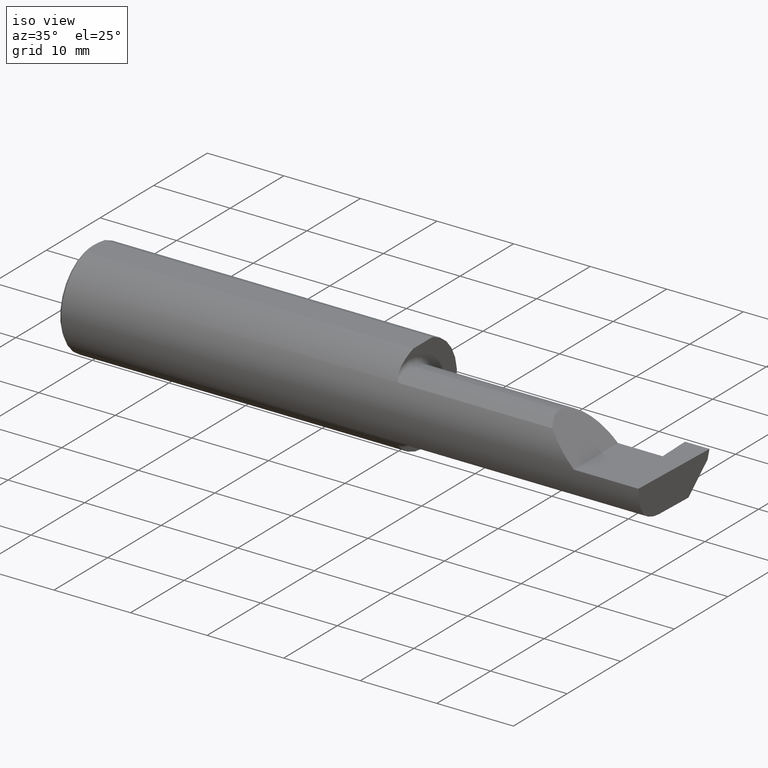
[diagram: clean part render]
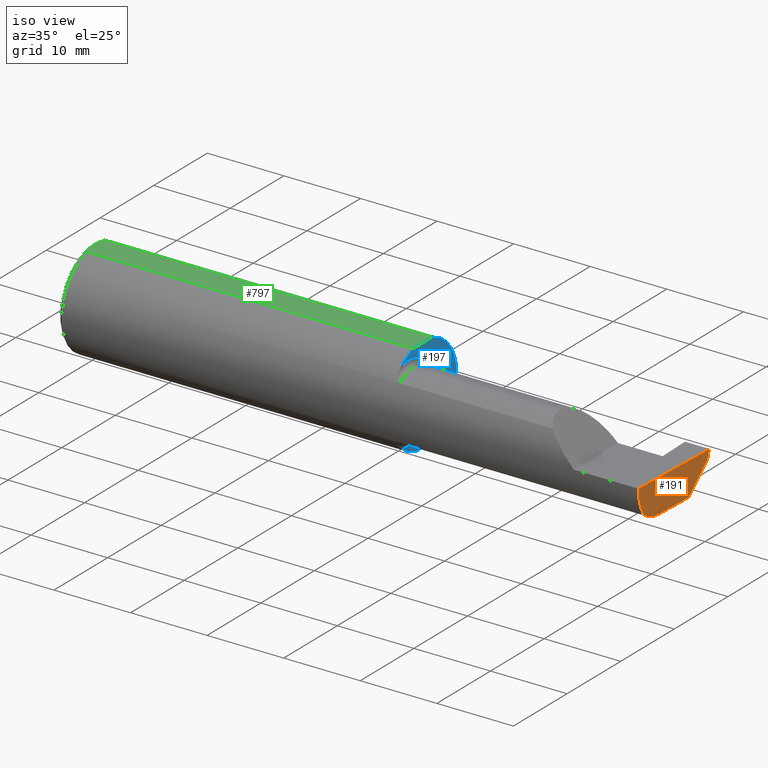
[diagram: same view with three faces highlighted in distinct colors, each labeled with its STEP entity id]
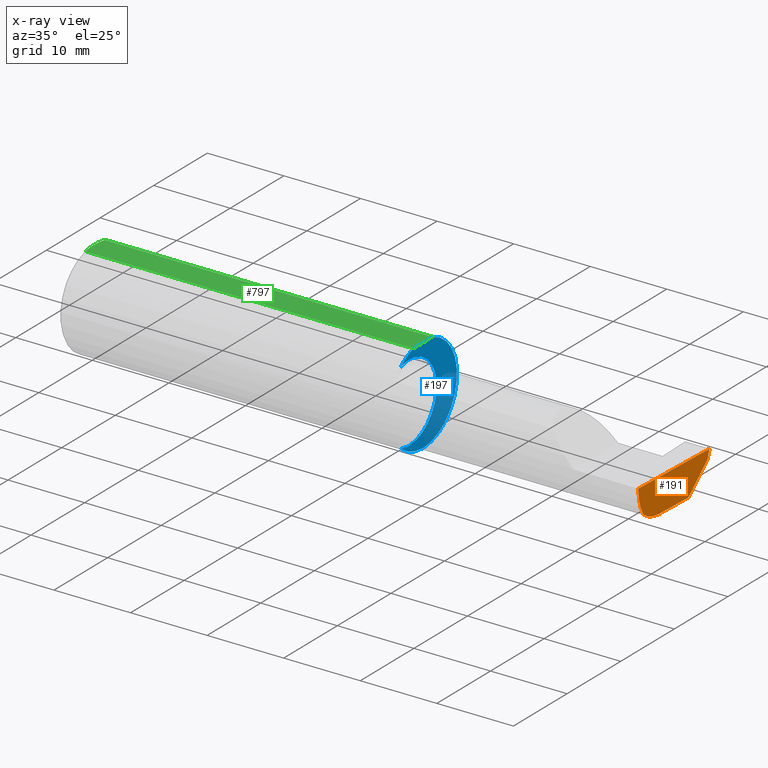
[diagram: x-ray of the same camera — body ghosted, the three highlighted faces saturated]
A machine part, iso view with three faces highlighted in distinct colors.
The next image is the same camera in x-ray (body ghosted, the three faces saturated) — at least one of them is partly hidden behind the body in this view.
Their STEP definitions:

[orange] entity #191 — the highlighted planar face has unit normal (-0.999, 0.0349, 0.0262).
#1 = VECTOR ( 'NONE', #216, 39.37007874015748854 ) ;
#6 =( BOUNDED_CURVE ( )  B_SPLINE_CURVE ( 3, ( #467, #591, #779, #187 ),
 .UNSPECIFIED., .F., .T. ) 
 B_SPLINE_CURVE_WITH_KNOTS ( ( 4, 4 ),
 ( 0.2675252011803428975, 0.9270880441442503894 ),
 .UNSPECIFIED. ) 
 CURVE ( )  GEOMETRIC_REPRESENTATION_ITEM ( )  RATIONAL_B_SPLINE_CURVE ( ( 1.000000000000000000, 0.9640754331822828371, 0.9640754331822828371, 1.000000000000000000 ) ) 
 REPRESENTATION_ITEM ( '' )  );
#21 = DIRECTION ( 'NONE',  ( -0.03489949670249939406, -0.9993908270190957621, 2.445004146800612422E-16 ) ) ;
#44 = ORIENTED_EDGE ( 'NONE', *, *, #616, .T. ) ;
#54 = ORIENTED_EDGE ( 'NONE', *, *, #552, .F. ) ;
#65 = VECTOR ( 'NONE', #174, 39.37007874015748143 ) ;
#77 = LINE ( 'NONE', #265, #669 ) ;
#80 = CARTESIAN_POINT ( 'NONE',  ( 2.980479240051444378, -0.2080850024789291652, -0.1382955322609665250 ) ) ;
#99 = ORIENTED_EDGE ( 'NONE', *, *, #653, .F. ) ;
#143 = DIRECTION ( 'NONE',  ( -0.03432699337968036363, -0.2586665114180216052, -0.9653565628286482347 ) ) ;
#171 = DIRECTION ( 'NONE',  ( -0.03489949670249940100, -0.9993908270190957621, 0.000000000000000000 ) ) ;
#174 = DIRECTION ( 'NONE',  ( 0.03489949670249940794, 0.9993908270190957621, -4.452728370532699971E-18 ) ) ;
#176 = CARTESIAN_POINT ( 'NONE',  ( 2.994767799596354418, 0.2473327124642303587, -0.1999314649951115241 ) ) ;
#187 = CARTESIAN_POINT ( 'NONE',  ( 2.983262242683407006, -0.1008499999999999674, -0.1749999999999999889 ) ) ;
#191 = ADVANCED_FACE ( 'NONE', ( #290 ), #719, .F. ) ;
#195 = ORIENTED_EDGE ( 'NONE', *, *, #539, .F. ) ;
#198 = LINE ( 'NONE', #463, #1 ) ;
#216 = DIRECTION ( 'NONE',  ( 0.02616100201822768243, -0.0009135623211515309658, 0.9996573249755575929 ) ) ;
#247 = VECTOR ( 'NONE', #21, 39.37007874015748854 ) ;
#260 = CARTESIAN_POINT ( 'NONE',  ( 2.982632426700502215, -0.2498495826666993769, -0.0004566631977452191267 ) ) ;
#265 = CARTESIAN_POINT ( 'NONE',  ( 2.999793790066964672, 0.2455961323656265238, -0.005799112959718751882 ) ) ;
#290 = FACE_OUTER_BOUND ( 'NONE', #579, .T. ) ;
#326 =( BOUNDED_CURVE ( )  B_SPLINE_CURVE ( 3, ( #736, #378, #443, #260 ),
 .UNSPECIFIED., .F., .T. ) 
 B_SPLINE_CURVE_WITH_KNOTS ( ( 4, 4 ),
 ( 0.05713034791898981279, 0.6418805321923489737 ),
 .UNSPECIFIED. ) 
 CURVE ( )  GEOMETRIC_REPRESENTATION_ITEM ( )  RATIONAL_B_SPLINE_CURVE ( ( 1.000000000000000000, 0.9717080070095445166, 0.9717080070095445166, 1.000000000000000000 ) ) 
 REPRESENTATION_ITEM ( '' )  );
#333 = CARTESIAN_POINT ( 'NONE',  ( 2.982644377562602589, -0.2498499999999999610, 1.813681607540488003E-17 ) ) ;
#336 = LINE ( 'NONE', #567, #247 ) ;
#361 = CARTESIAN_POINT ( 'NONE',  ( 2.998041052908566595, 0.2295359730721147906, -0.05128836407605352060 ) ) ;
#363 = EDGE_CURVE ( 'NONE', #778, #644, #326, .T. ) ;
#365 = VERTEX_POINT ( 'NONE', #686 ) ;
#378 = CARTESIAN_POINT ( 'NONE',  ( 2.980602402804240381, -0.2354324170447328057, -0.09714751587400703714 ) ) ;
#381 = CARTESIAN_POINT ( 'NONE',  ( 2.983262242683407006, -0.1008499999999999674, -0.1749999999999999889 ) ) ;
#382 = AXIS2_PLACEMENT_3D ( 'NONE', #176, #710, #171 ) ;
#391 = CARTESIAN_POINT ( 'NONE',  ( 3.000000000000000444, 0.2471499999999999531, -7.549931466865102584E-16 ) ) ;
#443 = CARTESIAN_POINT ( 'NONE',  ( 2.981341028891338230, -0.2497592792593404665, -0.04986346618387295371 ) ) ;
#447 = ORIENTED_EDGE ( 'NONE', *, *, #479, .F. ) ;
#463 = CARTESIAN_POINT ( 'NONE',  ( 2.977412177158956563, -0.2496672875357696664, -0.1999314649951114686 ) ) ;
#467 = CARTESIAN_POINT ( 'NONE',  ( 2.980479240051444378, -0.2080850024789291652, -0.1382955322609665250 ) ) ;
#479 = EDGE_CURVE ( 'NONE', #754, #753, #336, .T. ) ;
#506 = CARTESIAN_POINT ( 'NONE',  ( 2.990479469570817006, 0.1058243371481679268, -0.1749999999999999889 ) ) ;
#520 = VECTOR ( 'NONE', #606, 39.37007874015748854 ) ;
#533 = LINE ( 'NONE', #787, #65 ) ;
#539 = EDGE_CURVE ( 'NONE', #644, #560, #198, .T. ) ;
#548 = VERTEX_POINT ( 'NONE', #391 ) ;
#552 = EDGE_CURVE ( 'NONE', #548, #365, #77, .T. ) ;
#560 = VERTEX_POINT ( 'NONE', #333 ) ;
#567 = CARTESIAN_POINT ( 'NONE',  ( 2.993019781838999194, 0.1785693626775286258, -0.1750000000000000444 ) ) ;
#568 = ORIENTED_EDGE ( 'NONE', *, *, #600, .F. ) ;
#579 = EDGE_LOOP ( 'NONE', ( #44, #447, #99, #54, #568, #195, #789 ) ) ;
#591 = CARTESIAN_POINT ( 'NONE',  ( 2.980931506555613453, -0.1771157075472509779, -0.1623092683844330475 ) ) ;
#600 = EDGE_CURVE ( 'NONE', #560, #548, #533, .T. ) ;
#606 = DIRECTION ( 'NONE',  ( -0.04317993108637931121, -0.7064472710512011977, -0.7064472710511988662 ) ) ;
#616 = EDGE_CURVE ( 'NONE', #778, #753, #6, .T. ) ;
#644 = VERTEX_POINT ( 'NONE', #771 ) ;
#653 = EDGE_CURVE ( 'NONE', #365, #754, #661, .T. ) ;
#661 = LINE ( 'NONE', #361, #520 ) ;
#669 = VECTOR ( 'NONE', #143, 39.37007874015748854 ) ;
#686 = CARTESIAN_POINT ( 'NONE',  ( 2.998364291748493393, 0.2348243371481683328, -0.04599999999999999922 ) ) ;
#710 = DIRECTION ( 'NONE',  ( -0.9990483607430196145, 0.03488753751661385211, 0.02617694830785935456 ) ) ;
#719 = PLANE ( 'NONE',  #382 ) ;
#736 = CARTESIAN_POINT ( 'NONE',  ( 2.980479240051444378, -0.2080850024789291652, -0.1382955322609665250 ) ) ;
#753 = VERTEX_POINT ( 'NONE', #381 ) ;
#754 = VERTEX_POINT ( 'NONE', #506 ) ;
#771 = CARTESIAN_POINT ( 'NONE',  ( 2.982632426700502215, -0.2498495826666993769, -0.0004566631977452191267 ) ) ;
#778 = VERTEX_POINT ( 'NONE', #80 ) ;
#779 = CARTESIAN_POINT ( 'NONE',  ( 2.981893741990786495, -0.1400387324517231025, -0.1750000000000000167 ) ) ;
#787 = CARTESIAN_POINT ( 'NONE',  ( 2.982660284539054629, -0.2493944837933358694, 2.123502703737254632E-18 ) ) ;
#789 = ORIENTED_EDGE ( 'NONE', *, *, #363, .F. ) ;

[blue] entity #197 — the highlighted planar face has unit normal (1, 0, 0).
#2 = DIRECTION ( 'NONE',  ( 0.000000000000000000, 0.000000000000000000, 1.000000000000000000 ) ) ;
#15 = VERTEX_POINT ( 'NONE', #23 ) ;
#23 = CARTESIAN_POINT ( 'NONE',  ( 1.700000000000000178, -0.1008499999999999536, -0.1999999999999999833 ) ) ;
#27 = DIRECTION ( 'NONE',  ( -1.000000000000000000, -0.000000000000000000, -0.000000000000000000 ) ) ;
#41 = EDGE_CURVE ( 'NONE', #420, #261, #193, .T. ) ;
#43 = LINE ( 'NONE', #232, #138 ) ;
#51 = CARTESIAN_POINT ( 'NONE',  ( 1.700000000000000178, 0.000000000000000000, 0.000000000000000000 ) ) ;
#52 = DIRECTION ( 'NONE',  ( 1.000000000000000000, 0.000000000000000000, 0.000000000000000000 ) ) ;
#90 = ORIENTED_EDGE ( 'NONE', *, *, #252, .F. ) ;
#116 = CARTESIAN_POINT ( 'NONE',  ( 1.700000000000000178, -0.06997856814768374512, 0.2398500000000000076 ) ) ;
#124 = AXIS2_PLACEMENT_3D ( 'NONE', #499, #496, #2 ) ;
#125 = DIRECTION ( 'NONE',  ( 1.000000000000000000, 0.000000000000000000, 0.000000000000000000 ) ) ;
#136 = ORIENTED_EDGE ( 'NONE', *, *, #41, .T. ) ;
#138 = VECTOR ( 'NONE', #166, 39.37007874015748143 ) ;
#160 = CARTESIAN_POINT ( 'NONE',  ( 1.700000000000000178, -0.1008499999999999674, 0.000000000000000000 ) ) ;
#166 = DIRECTION ( 'NONE',  ( -0.000000000000000000, 1.000000000000000000, 0.000000000000000000 ) ) ;
#193 = CIRCLE ( 'NONE', #234, 0.1999999999999999833 ) ;
#197 = ADVANCED_FACE ( 'NONE', ( #607 ), #547, .T. ) ;
#232 = CARTESIAN_POINT ( 'NONE',  ( 1.700000000000000178, -0.2498499999999999888, 0.2398500000000000076 ) ) ;
#234 = AXIS2_PLACEMENT_3D ( 'NONE', #704, #27, #334 ) ;
#248 = AXIS2_PLACEMENT_3D ( 'NONE', #415, #52, #550 ) ;
#251 = VERTEX_POINT ( 'NONE', #116 ) ;
#252 = EDGE_CURVE ( 'NONE', #251, #608, #43, .T. ) ;
#261 = VERTEX_POINT ( 'NONE', #728 ) ;
#285 = DIRECTION ( 'NONE',  ( 0.000000000000000000, 0.000000000000000000, -1.000000000000000000 ) ) ;
#293 = CARTESIAN_POINT ( 'NONE',  ( 1.700000000000000178, -0.1616050818046604332, -0.1905487340154980169 ) ) ;
#311 = EDGE_CURVE ( 'NONE', #261, #15, #402, .T. ) ;
#334 = DIRECTION ( 'NONE',  ( 0.000000000000000000, 0.000000000000000000, 1.000000000000000000 ) ) ;
#357 = EDGE_LOOP ( 'NONE', ( #493, #90, #627, #136, #512, #673 ) ) ;
#402 = CIRCLE ( 'NONE', #124, 0.1999999999999999833 ) ;
#415 = CARTESIAN_POINT ( 'NONE',  ( 1.700000000000000178, 0.2741499999999999493, 0.000000000000000000 ) ) ;
#420 = VERTEX_POINT ( 'NONE', #448 ) ;
#424 = AXIS2_PLACEMENT_3D ( 'NONE', #501, #125, #679 ) ;
#448 = CARTESIAN_POINT ( 'NONE',  ( 1.700000000000000178, -0.1616050818046604332, 0.1905487340154980169 ) ) ;
#485 = CIRCLE ( 'NONE', #685, 0.1999999999999999833 ) ;
#493 = ORIENTED_EDGE ( 'NONE', *, *, #748, .T. ) ;
#495 = DIRECTION ( 'NONE',  ( 0.000000000000000000, 0.000000000000000000, 1.000000000000000000 ) ) ;
#496 = DIRECTION ( 'NONE',  ( -1.000000000000000000, -0.000000000000000000, -0.000000000000000000 ) ) ;
#499 = CARTESIAN_POINT ( 'NONE',  ( 1.700000000000000178, -0.1008499999999999674, 0.000000000000000000 ) ) ;
#501 = CARTESIAN_POINT ( 'NONE',  ( 1.700000000000000178, 0.000000000000000000, 0.000000000000000000 ) ) ;
#512 = ORIENTED_EDGE ( 'NONE', *, *, #311, .T. ) ;
#547 = PLANE ( 'NONE',  #248 ) ;
#549 = CIRCLE ( 'NONE', #583, 0.2498499999999999888 ) ;
#550 = DIRECTION ( 'NONE',  ( 0.000000000000000000, 0.000000000000000000, -1.000000000000000000 ) ) ;
#583 = AXIS2_PLACEMENT_3D ( 'NONE', #51, #586, #285 ) ;
#586 = DIRECTION ( 'NONE',  ( 1.000000000000000000, 0.000000000000000000, 0.000000000000000000 ) ) ;
#607 = FACE_OUTER_BOUND ( 'NONE', #357, .T. ) ;
#608 = VERTEX_POINT ( 'NONE', #723 ) ;
#627 = ORIENTED_EDGE ( 'NONE', *, *, #727, .T. ) ;
#673 = ORIENTED_EDGE ( 'NONE', *, *, #690, .T. ) ;
#679 = DIRECTION ( 'NONE',  ( 0.000000000000000000, 0.000000000000000000, -1.000000000000000000 ) ) ;
#685 = AXIS2_PLACEMENT_3D ( 'NONE', #160, #735, #495 ) ;
#687 = VERTEX_POINT ( 'NONE', #293 ) ;
#690 = EDGE_CURVE ( 'NONE', #15, #687, #485, .T. ) ;
#704 = CARTESIAN_POINT ( 'NONE',  ( 1.700000000000000178, -0.1008499999999999674, 0.000000000000000000 ) ) ;
#723 = CARTESIAN_POINT ( 'NONE',  ( 1.700000000000000178, 0.06997856814768360634, 0.2398500000000000076 ) ) ;
#727 = EDGE_CURVE ( 'NONE', #251, #420, #549, .T. ) ;
#728 = CARTESIAN_POINT ( 'NONE',  ( 1.700000000000000178, -0.1008499999999999674, 0.1999999999999999833 ) ) ;
#735 = DIRECTION ( 'NONE',  ( -1.000000000000000000, -0.000000000000000000, -0.000000000000000000 ) ) ;
#748 = EDGE_CURVE ( 'NONE', #687, #608, #763, .T. ) ;
#763 = CIRCLE ( 'NONE', #424, 0.2498499999999999888 ) ;

[green] entity #797 — the highlighted planar face has unit normal (0, -0, 1).
#5 = DIRECTION ( 'NONE',  ( 0.000000000000000000, -0.000000000000000000, 1.000000000000000000 ) ) ;
#7 = CARTESIAN_POINT ( 'NONE',  ( 0.005880636388018714231, -0.02358947477502552903, 0.2398500000000000354 ) ) ;
#10 = CARTESIAN_POINT ( 'NONE',  ( 0.01499999999999999944, -0.06997856814768359246, 0.2398500000000000076 ) ) ;
#38 = CARTESIAN_POINT ( 'NONE',  ( 0.000000000000000000, 0.06997856814768359246, 0.2398500000000000076 ) ) ;
#43 = LINE ( 'NONE', #232, #138 ) ;
#53 = EDGE_CURVE ( 'NONE', #608, #605, #455, .T. ) ;
#74 = CARTESIAN_POINT ( 'NONE',  ( 0.004999999999999737293, -0.01183939972798748325, 0.2398500000000000631 ) ) ;
#110 = B_SPLINE_CURVE_WITH_KNOTS ( 'NONE', 3,
 ( #275, #396, #518, #698, #782, #218 ),
 .UNSPECIFIED., .F., .F.,
 ( 4, 2, 4 ),
 ( 0.006064768674679249863, 0.006954995897674296282, 0.007845223120669342701 ),
 .UNSPECIFIED. ) ;
#116 = CARTESIAN_POINT ( 'NONE',  ( 1.700000000000000178, -0.06997856814768374512, 0.2398500000000000076 ) ) ;
#138 = VECTOR ( 'NONE', #166, 39.37007874015748143 ) ;
#146 = ORIENTED_EDGE ( 'NONE', *, *, #53, .T. ) ;
#166 = DIRECTION ( 'NONE',  ( -0.000000000000000000, 1.000000000000000000, 0.000000000000000000 ) ) ;
#172 = ORIENTED_EDGE ( 'NONE', *, *, #252, .T. ) ;
#190 = FACE_OUTER_BOUND ( 'NONE', #475, .T. ) ;
#218 = CARTESIAN_POINT ( 'NONE',  ( 0.004999999999999471013, 5.665694022114171174E-17, 0.2398500000000000076 ) ) ;
#232 = CARTESIAN_POINT ( 'NONE',  ( 1.700000000000000178, -0.2498499999999999888, 0.2398500000000000076 ) ) ;
#251 = VERTEX_POINT ( 'NONE', #116 ) ;
#252 = EDGE_CURVE ( 'NONE', #251, #608, #43, .T. ) ;
#262 = PLANE ( 'NONE',  #355 ) ;
#264 = VERTEX_POINT ( 'NONE', #662 ) ;
#275 = CARTESIAN_POINT ( 'NONE',  ( 0.01499999999999998036, 0.06997856814768359246, 0.2398500000000000076 ) ) ;
#322 = ORIENTED_EDGE ( 'NONE', *, *, #339, .T. ) ;
#327 = CARTESIAN_POINT ( 'NONE',  ( 3.000000000000000444, -0.2498499999999999888, 0.2398500000000000076 ) ) ;
#339 = EDGE_CURVE ( 'NONE', #576, #264, #562, .T. ) ;
#349 = CARTESIAN_POINT ( 'NONE',  ( 0.01499999999999998036, 0.06997856814768359246, 0.2398500000000000076 ) ) ;
#355 = AXIS2_PLACEMENT_3D ( 'NONE', #327, #5, #746 ) ;
#383 = CARTESIAN_POINT ( 'NONE',  ( 0.009274236576542580976, -0.04692405468904852633, 0.2398500000000000076 ) ) ;
#385 = ORIENTED_EDGE ( 'NONE', *, *, #561, .T. ) ;
#388 = ORIENTED_EDGE ( 'NONE', *, *, #445, .T. ) ;
#396 = CARTESIAN_POINT ( 'NONE',  ( 0.01181966702888963446, 0.05862357455657472849, 0.2398500000000000631 ) ) ;
#414 = CARTESIAN_POINT ( 'NONE',  ( 0.004999999999999471013, 5.665694022114171174E-17, 0.2398500000000000076 ) ) ;
#445 = EDGE_CURVE ( 'NONE', #264, #251, #702, .T. ) ;
#455 = LINE ( 'NONE', #38, #646 ) ;
#475 = EDGE_LOOP ( 'NONE', ( #388, #172, #146, #385, #322 ) ) ;
#488 = CARTESIAN_POINT ( 'NONE',  ( 0.004999999999999471013, 5.665694022114171174E-17, 0.2398500000000000076 ) ) ;
#513 = CARTESIAN_POINT ( 'NONE',  ( 0.000000000000000000, -0.06997856814768359246, 0.2398500000000000076 ) ) ;
#518 = CARTESIAN_POINT ( 'NONE',  ( 0.009312860630924745670, 0.04712480857212029278, 0.2398500000000000354 ) ) ;
#524 = DIRECTION ( 'NONE',  ( -1.000000000000000000, -0.000000000000000000, -0.000000000000000000 ) ) ;
#561 = EDGE_CURVE ( 'NONE', #605, #576, #110, .T. ) ;
#562 = B_SPLINE_CURVE_WITH_KNOTS ( 'NONE', 3,
 ( #488, #74, #7, #383, #564, #10 ),
 .UNSPECIFIED., .F., .F.,
 ( 4, 2, 4 ),
 ( 0.007845223120669342701, 0.008734561288375082555, 0.009623899456080820675 ),
 .UNSPECIFIED. ) ;
#564 = CARTESIAN_POINT ( 'NONE',  ( 0.01180609504125290990, -0.05857511741890331081, 0.2398500000000000354 ) ) ;
#576 = VERTEX_POINT ( 'NONE', #414 ) ;
#605 = VERTEX_POINT ( 'NONE', #349 ) ;
#608 = VERTEX_POINT ( 'NONE', #723 ) ;
#646 = VECTOR ( 'NONE', #524, 39.37007874015748143 ) ;
#662 = CARTESIAN_POINT ( 'NONE',  ( 0.01499999999999999944, -0.06997856814768359246, 0.2398500000000000076 ) ) ;
#695 = VECTOR ( 'NONE', #707, 39.37007874015748143 ) ;
#698 = CARTESIAN_POINT ( 'NONE',  ( 0.005899890343961325216, 0.02378560009989246285, 0.2398500000000000076 ) ) ;
#702 = LINE ( 'NONE', #513, #695 ) ;
#707 = DIRECTION ( 'NONE',  ( 1.000000000000000000, 0.000000000000000000, 0.000000000000000000 ) ) ;
#723 = CARTESIAN_POINT ( 'NONE',  ( 1.700000000000000178, 0.06997856814768360634, 0.2398500000000000076 ) ) ;
#746 = DIRECTION ( 'NONE',  ( 1.000000000000000000, 0.000000000000000000, -0.000000000000000000 ) ) ;
#782 = CARTESIAN_POINT ( 'NONE',  ( 0.004999999999999748569, 0.01185123536186986556, 0.2398500000000000354 ) ) ;
#797 = ADVANCED_FACE ( 'NONE', ( #190 ), #262, .T. ) ;